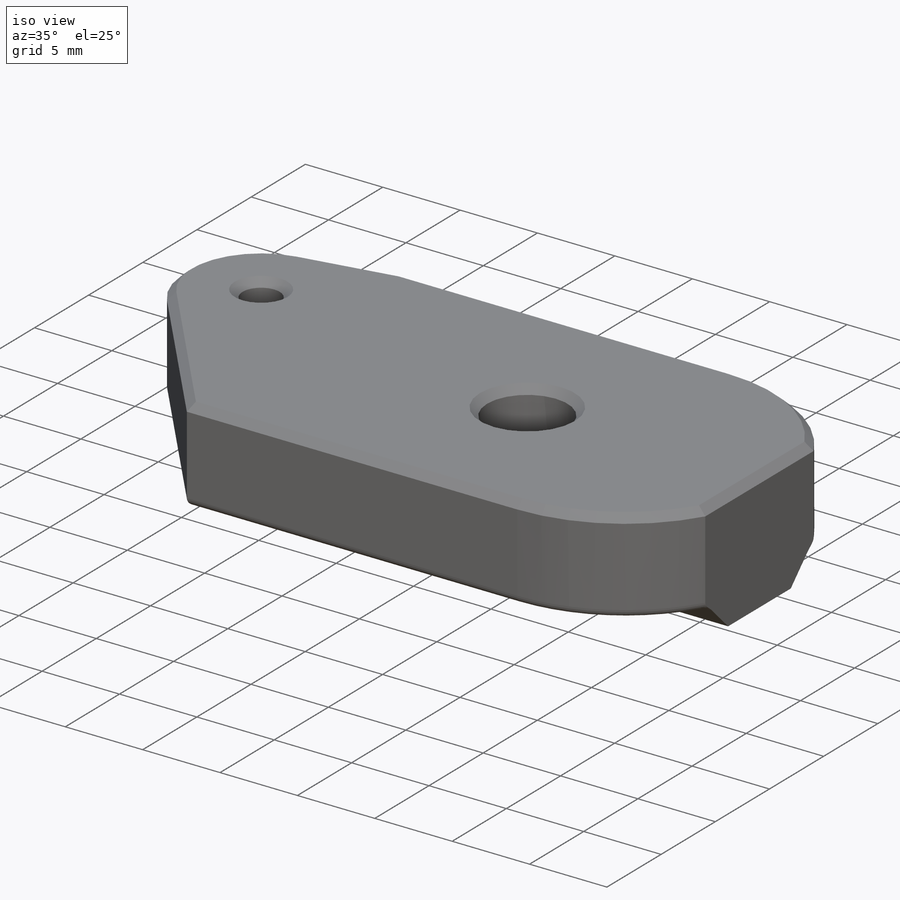
[diagram: iso view]
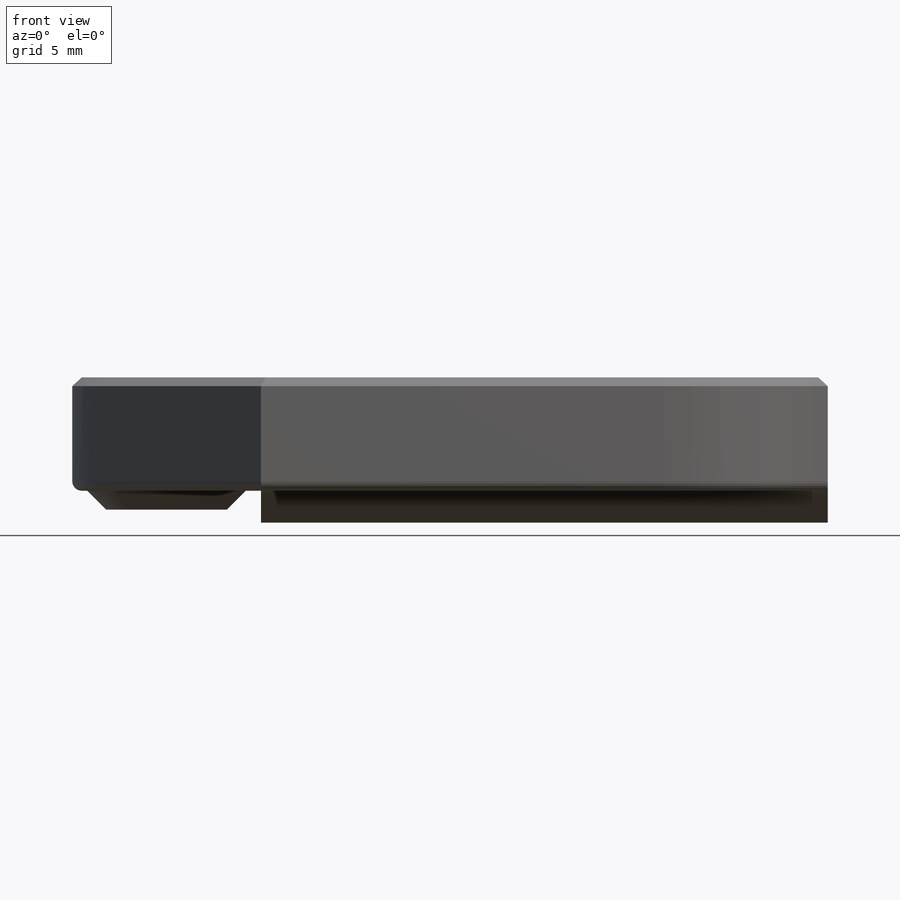
[diagram: front view]
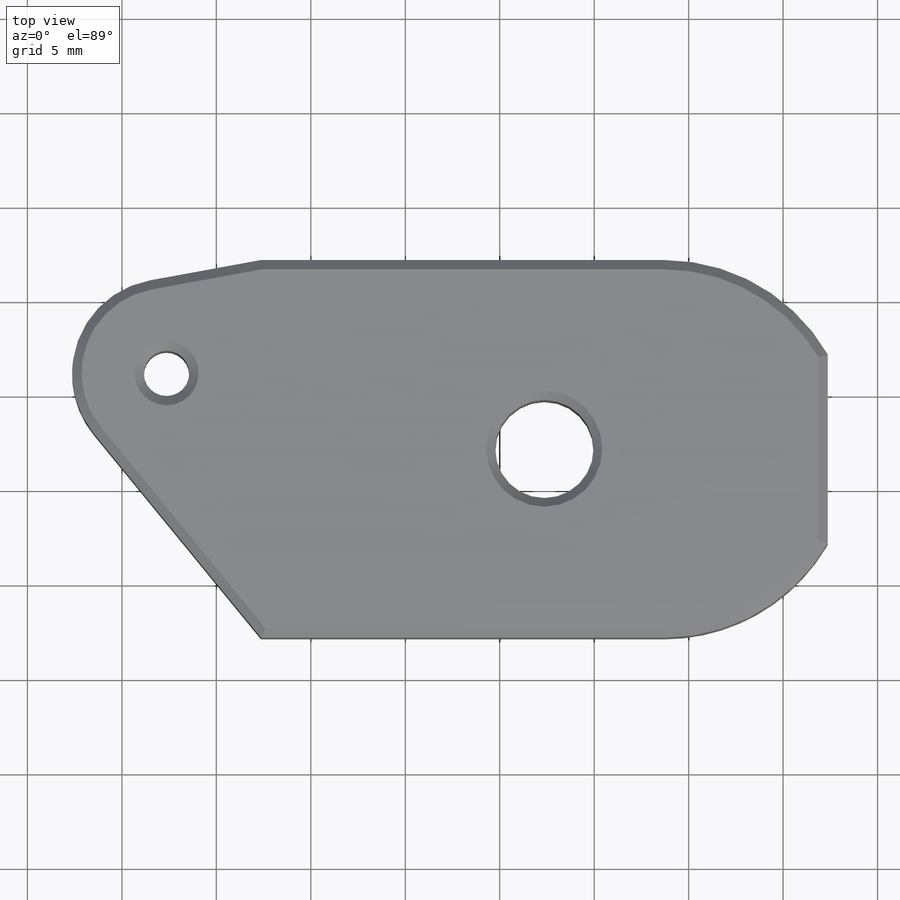
[diagram: top view]
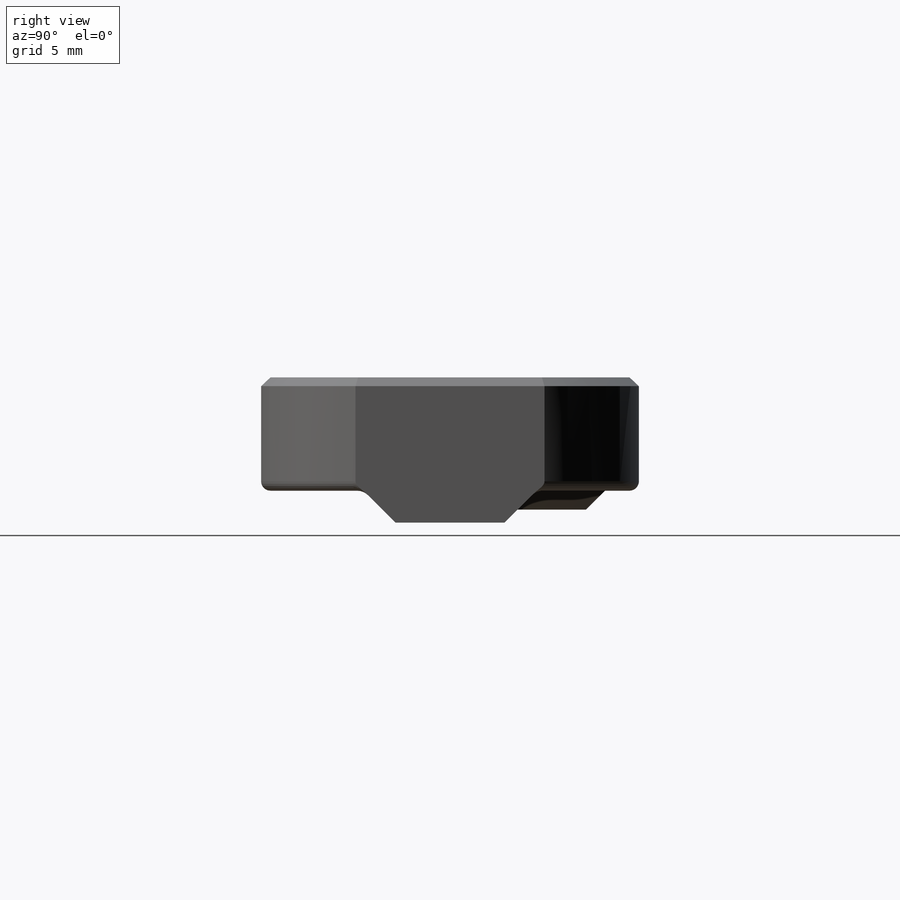
[diagram: right view]
SOLIDWORKS PART (.sldprt)
format: sldprt  version: not decoded by parser v0  size: 443,392 bytes
history: native  units: mm
features: sketch x7, cut_extrude x5, extrude x2, chamfer x2, material x1, fillet x1 (+12 scaffold rows collapsed)
feature tree (30):
  scaffold x12  (default folders/planes/origin — collapsed)
  material  "Material <not specified>"
  sketch  "Sketch1"  dims[c1.D2=~2.373018mm c1.D3=20.0mm c2.D2=6.0mm c2.D3=5.78mm c2.D1=0.0mm]
  extrude  "Boss-Extrude1"  Depth=40mm
  sketch  "Sketch2"  dims[c1.D1=~9.115659mm c1.D2=15.0mm c1.D3=22.5mm c1.D4=~1.657802mm c2.D3=0.0mm]
  cut_extrude  "Cut-Extrude1"  [1 undecoded]
  sketch  "Sketch9"  dims[D1=10.0mm]
  cut_extrude  "Cut-Extrude4"  [1 undecoded]
  sketch  "Sketch16"  dims[c1.D1=2.4mm c1.D2=5.0mm c1.D3=~7.619707mm c2.D3=90.0deg c3.D3=6.0mm]
  cut_extrude  "Cut-Extrude8"  [1 undecoded]
  sketch  "Sketch17"  dims[D1=20.0mm D2=~4.554041mm]
  cut_extrude  "Cut-Extrude9"  Depth=10mm
  sketch  "Sketch18"  dims[D2=~13.195143mm D1=0.0mm]
  cut_extrude  "Cut-Extrude10"  Depth=10mm
  sketch  "Sketch20"  dims[D1=2.0mm]
  extrude  "Boss-Extrude4"  Depth=1mm
  chamfer  "Chamfer2"  Distance=1mm Angle=45deg
  fillet  "Fillet1"  Radius=0.5mm
  chamfer  "Chamfer3"  Distance=0.5mm Angle=43deg
decode coverage: 14 of 17 modeling features carry decoded parameters
note: ~ marks probable driven/reference dimensions
note: 3 parameter values undecoded
summary: no parameter record found for 3 features
note: suppression state not decoded; provenance and decode notes live in map.json
